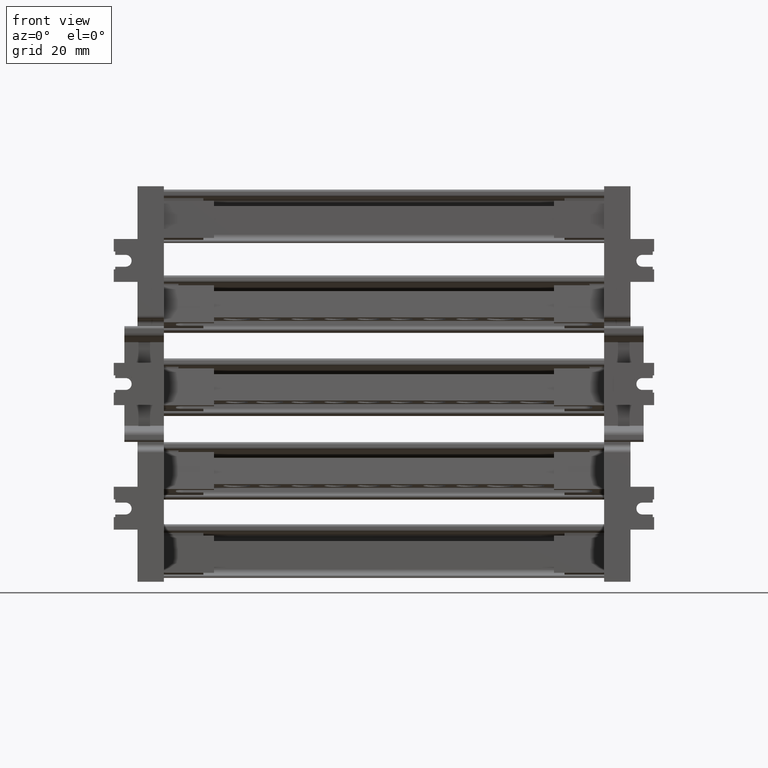
[diagram: clean part render]
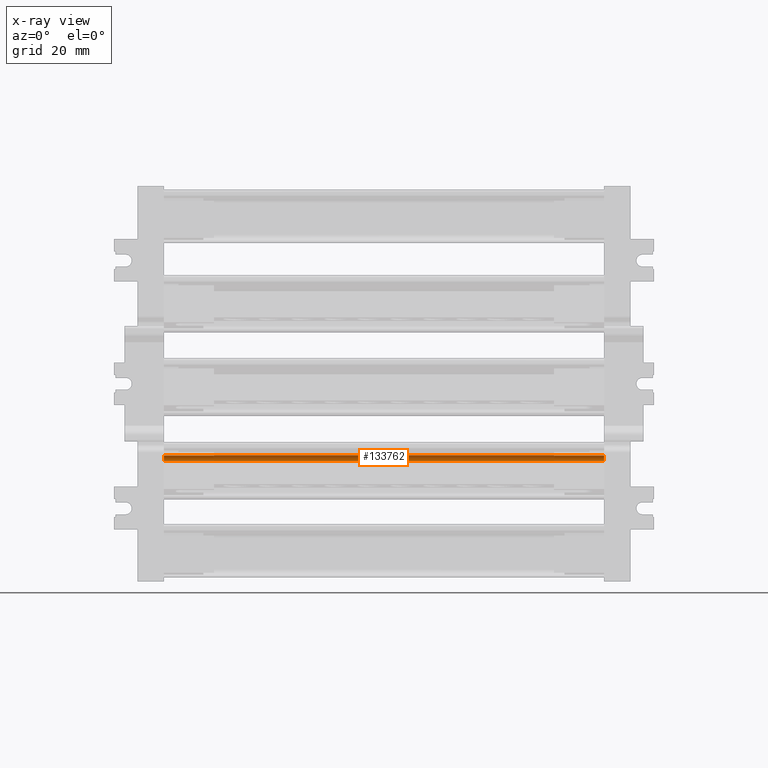
[diagram: x-ray — body ghosted, one internal face saturated and labeled with its STEP entity id]
A machine part, front view, then the same camera in x-ray: the body is ghosted and one INTERNAL B-rep face — a face not visible from any outside direction — is saturated and labeled: STEP entity #133762.
In plain terms, the highlighted cylindrical surface (edge-blend (fillet) strip) has radius 2 mm, axis along (-1, 0, 0).
Its self-contained STEP definition (entity closure, byte-faithful):
#7673 = B_SPLINE_CURVE_WITH_KNOTS ( 'NONE', 3,
 ( #230687, #230662, #230693, #230570, #230702, #230707, #230818, #230786, #230826, #230739 ),
 .UNSPECIFIED., .F., .F.,
 ( 4, 2, 2, 2, 4 ),
 ( 0.0000000000000000000, 0.2500000000000000000, 0.5000000000000000000, 0.7500000000000000000, 1.000000000000000000 ),
 .UNSPECIFIED. ) ;
#25263 = EDGE_CURVE ( 'NONE', #152727, #152747, #7673, .T. ) ;
#25420 = EDGE_CURVE ( 'NONE', #160060, #152747, #210472, .T. ) ;
#25531 = EDGE_CURVE ( 'NONE', #159875, #152727, #213246, .T. ) ;
#57479 = B_SPLINE_CURVE_WITH_KNOTS ( 'NONE', 3,
 ( #127272, #127281, #127377, #127303, #127284, #127276, #127387, #127242, #127300, #127305, #127321, #127498, #127461, #127472, #127413, #127540, #127410, #127416, #127456, #127431 ),
 .UNSPECIFIED., .F., .F.,
 ( 4, 1, 1, 1, 2, 2, 2, 1, 1, 1, 2, 2, 4 ),
 ( 0.0000000000000000000, 0.1250000000000314200, 0.1875000000000605600, 0.2187500000000726900, 0.2343750000000671400, 0.2500000000000615600, 0.5000000000002760000, 0.6250000000003832500, 0.6875000000004537500, 0.7187500000004840600, 0.7343750000004950500, 0.7500000000005059300, 1.000000000000000000 ),
 .UNSPECIFIED. ) ;
#83739 = CYLINDRICAL_SURFACE ( 'NONE', #111482, 2.000000000000057300 ) ;
#83757 = DIRECTION ( 'NONE',  ( -1.000000000000000000, 1.014411376380974100E-014, 3.372056714747482900E-015 ) ) ;
#83770 = CARTESIAN_POINT ( 'NONE',  ( -12.17442802713044800, 167.8610831748236800, -376.0150571581652900 ) ) ;
#83833 = DIRECTION ( 'NONE',  ( -1.040834085586054400E-014, -1.000000000000000000, 0.0000000000000000000 ) ) ;
#83841 = FACE_OUTER_BOUND ( 'NONE', #211581, .T. ) ;
#111482 = AXIS2_PLACEMENT_3D ( 'NONE', #83770, #83757, #83833 ) ;
#112907 = ORIENTED_EDGE ( 'NONE', *, *, #25420, .F. ) ;
#112941 = ORIENTED_EDGE ( 'NONE', *, *, #184624, .F. ) ;
#112958 = ORIENTED_EDGE ( 'NONE', *, *, #25531, .T. ) ;
#112967 = ORIENTED_EDGE ( 'NONE', *, *, #25263, .T. ) ;
#127242 = CARTESIAN_POINT ( 'NONE',  ( 44.19725230226220700, 168.7657007336136700, -374.2312580639325000 ) ) ;
#127272 = CARTESIAN_POINT ( 'NONE',  ( 44.19725230226222800, 168.0701388866425200, -374.0260132397575000 ) ) ;
#127276 = CARTESIAN_POINT ( 'NONE',  ( 44.19725230226221400, 168.7247208894331200, -374.2110564595477600 ) ) ;
#127281 = CARTESIAN_POINT ( 'NONE',  ( 44.19725230226220000, 168.1953638920259100, -374.0392425796596300 ) ) ;
#127284 = CARTESIAN_POINT ( 'NONE',  ( 44.19725230226220700, 168.6823685369618600, -374.1909504633191500 ) ) ;
#127300 = CARTESIAN_POINT ( 'NONE',  ( 44.19725230226220700, 169.0227284762451900, -374.3642822700884400 ) ) ;
#127303 = CARTESIAN_POINT ( 'NONE',  ( 44.19725230226217900, 168.5824343407876100, -374.1476921602694600 ) ) ;
#127305 = CARTESIAN_POINT ( 'NONE',  ( 44.19725230226221400, 169.2310153355808200, -374.5327663882458800 ) ) ;
#127321 = CARTESIAN_POINT ( 'NONE',  ( 44.19725230226220700, 169.4909902619227800, -374.8479671754390100 ) ) ;
#127377 = CARTESIAN_POINT ( 'NONE',  ( 44.19725230226220700, 168.3781177868072800, -374.0757983067712200 ) ) ;
#127387 = CARTESIAN_POINT ( 'NONE',  ( 44.19725230226221400, 168.7528498824702300, -374.2248086178095700 ) ) ;
#127410 = CARTESIAN_POINT ( 'NONE',  ( 44.19725230226220000, 169.7754913493948000, -375.4360308991310800 ) ) ;
#127413 = CARTESIAN_POINT ( 'NONE',  ( 44.19725230226220700, 169.7597124553219900, -375.3860975554907800 ) ) ;
#127416 = CARTESIAN_POINT ( 'NONE',  ( 44.19725230226220000, 169.8508019762288400, -375.6920211025984600 ) ) ;
#127431 = CARTESIAN_POINT ( 'NONE',  ( 44.19725230226222100, 169.8534725710070200, -376.1893686436571900 ) ) ;
#127456 = CARTESIAN_POINT ( 'NONE',  ( 44.19725230226220700, 169.8753190378086800, -375.9381142683528200 ) ) ;
#127461 = CARTESIAN_POINT ( 'NONE',  ( 44.19725230226220000, 169.7019533100510100, -375.2275180730727600 ) ) ;
#127472 = CARTESIAN_POINT ( 'NONE',  ( 44.19725230226220700, 169.7435689183074000, -375.3378856116098100 ) ) ;
#127498 = CARTESIAN_POINT ( 'NONE',  ( 44.19725230226220000, 169.6029326726488800, -375.0152909847399200 ) ) ;
#127540 = CARTESIAN_POINT ( 'NONE',  ( 44.19725230226220000, 169.7700988747391500, -375.4184414225719000 ) ) ;
#133762 = ADVANCED_FACE ( 'NONE', ( #83841 ), #83739, .F. ) ;
#152727 = VERTEX_POINT ( 'NONE', #205307 ) ;
#152747 = VERTEX_POINT ( 'NONE', #202060 ) ;
#159875 = VERTEX_POINT ( 'NONE', #220910 ) ;
#160060 = VERTEX_POINT ( 'NONE', #220887 ) ;
#184624 = EDGE_CURVE ( 'NONE', #159875, #160060, #57479, .T. ) ;
#202060 = CARTESIAN_POINT ( 'NONE',  ( -122.7994280271304500, 169.8534725710086700, -376.1893686436572500 ) ) ;
#205307 = CARTESIAN_POINT ( 'NONE',  ( -122.7994280271304500, 168.0701388866438000, -374.0260132397568200 ) ) ;
#210428 = CARTESIAN_POINT ( 'NONE',  ( -12.17442802713042800, 169.8534725710075600, -376.1893686436567400 ) ) ;
#210472 = LINE ( 'NONE', #210428, #223605 ) ;
#210517 = DIRECTION ( 'NONE',  ( -1.000000000000000000, 1.014411376380974100E-014, 3.372056714747482900E-015 ) ) ;
#211581 = EDGE_LOOP ( 'NONE', ( #112958, #112967, #112907, #112941 ) ) ;
#213139 = CARTESIAN_POINT ( 'NONE',  ( -12.17442802713049800, 168.0701388866425500, -374.0260132397571600 ) ) ;
#213246 = LINE ( 'NONE', #213139, #223747 ) ;
#213354 = DIRECTION ( 'NONE',  ( -1.000000000000000000, 4.613783159490848900E-016, 4.389747237409139900E-015 ) ) ;
#220887 = CARTESIAN_POINT ( 'NONE',  ( 44.19725230226222100, 169.8534725710070200, -376.1893686436571900 ) ) ;
#220910 = CARTESIAN_POINT ( 'NONE',  ( 44.19725230226222800, 168.0701388866425200, -374.0260132397575000 ) ) ;
#223605 = VECTOR ( 'NONE', #210517, 1000.000000000000000 ) ;
#223747 = VECTOR ( 'NONE', #213354, 1000.000000000000000 ) ;
#230570 = CARTESIAN_POINT ( 'NONE',  ( -122.7994280271304300, 169.0357760967264900, -374.3758131598888200 ) ) ;
#230662 = CARTESIAN_POINT ( 'NONE',  ( -122.7994280271304500, 168.3276112808306700, -374.0530745198736300 ) ) ;
#230687 = CARTESIAN_POINT ( 'NONE',  ( -122.7994280271304500, 168.0701388866438000, -374.0260132397568200 ) ) ;
#230693 = CARTESIAN_POINT ( 'NONE',  ( -122.7994280271304500, 168.5796673077715600, -374.1307373364448900 ) ) ;
#230702 = CARTESIAN_POINT ( 'NONE',  ( -122.7994280271304500, 169.2396572152818800, -374.5431339395058200 ) ) ;
#230707 = CARTESIAN_POINT ( 'NONE',  ( -122.7994280271304300, 169.5690066910056800, -374.9426665532424200 ) ) ;
#230739 = CARTESIAN_POINT ( 'NONE',  ( -122.7994280271304500, 169.8534725710086700, -376.1893686436572500 ) ) ;
#230786 = CARTESIAN_POINT ( 'NONE',  ( -122.7994280271304600, 169.8478948394309800, -375.6692193984640700 ) ) ;
#230818 = CARTESIAN_POINT ( 'NONE',  ( -122.7994280271304300, 169.6943511069468100, -375.1747280347239000 ) ) ;
#230826 = CARTESIAN_POINT ( 'NONE',  ( -122.7994280271304500, 169.8760363741948800, -375.9314631930828900 ) ) ;